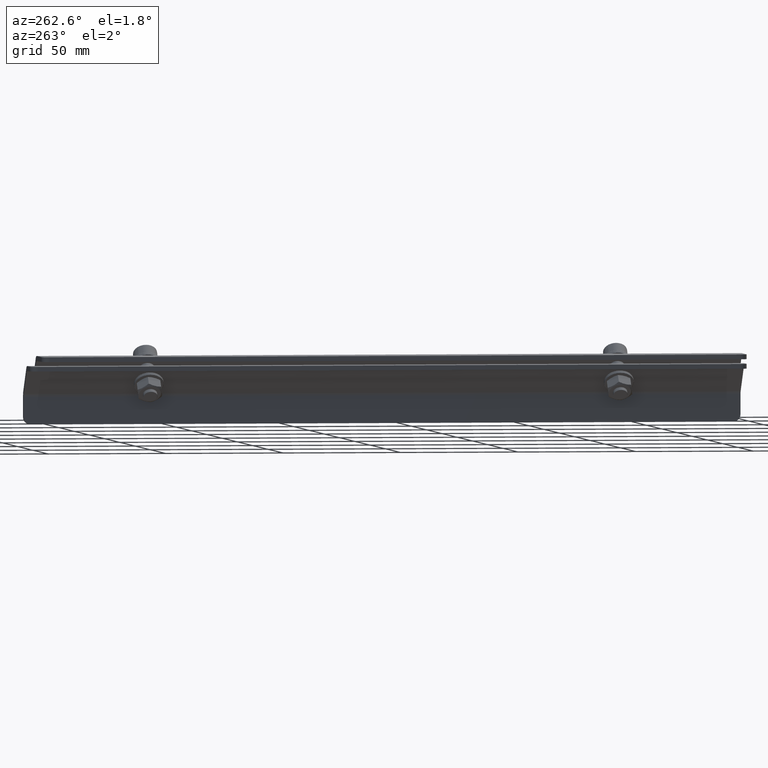
[diagram: clean part render]
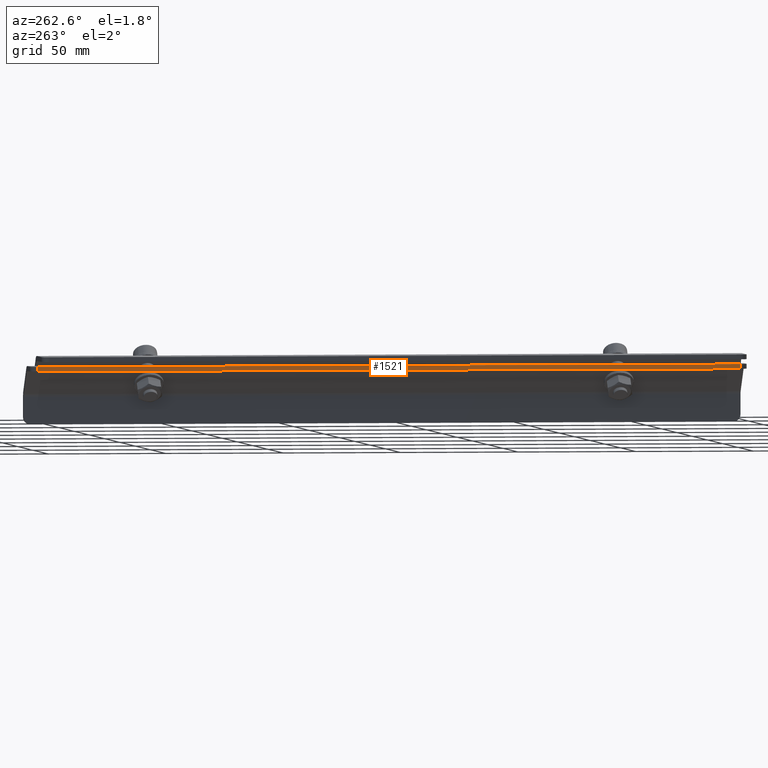
[diagram: same view with one face highlighted and labeled with its STEP entity id]
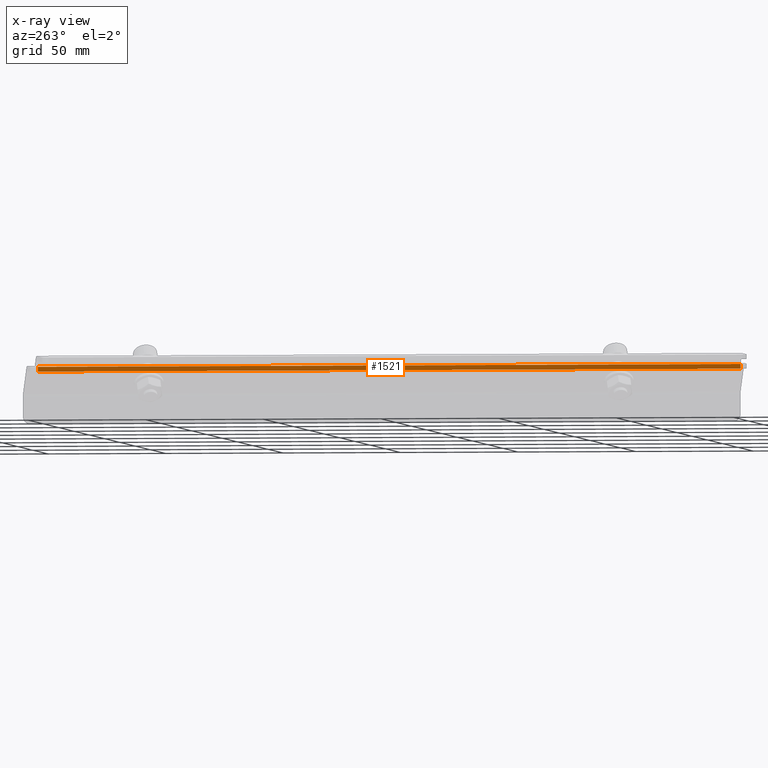
[diagram: x-ray of the same camera — body ghosted, the highlighted face saturated]
A machine part, auxiliary view. The second image highlights one B-rep face of the part: STEP entity #1521.
The next image is the same camera in x-ray: the body ghosted, the highlighted face saturated — about 0% of this face is hidden behind the body in this view.
In plain terms, the highlighted planar face has unit normal (-1, 0, 0).
Its self-contained STEP definition (entity closure, byte-faithful):
#4 = DIRECTION ( 'NONE',  ( 0.000000000000000000, 0.000000000000000000, 1.000000000000000000 ) ) ;
#57 = ORIENTED_EDGE ( 'NONE', *, *, #458, .T. ) ;
#458 = EDGE_CURVE ( 'NONE', #1101, #1626, #3897, .T. ) ;
#509 = AXIS2_PLACEMENT_3D ( 'NONE', #2040, #3015, #4 ) ;
#826 = CARTESIAN_POINT ( 'NONE',  ( -25.45242515708623188, -73.69554677319553093, 169.1843401663036275 ) ) ;
#897 = CARTESIAN_POINT ( 'NONE',  ( -25.45242515708623188, 228.2044532268045032, 170.3559130415574145 ) ) ;
#923 = CARTESIAN_POINT ( 'NONE',  ( -25.45242515708623188, -73.69554677319553093, 170.3559130415574145 ) ) ;
#1018 = ORIENTED_EDGE ( 'NONE', *, *, #2274, .F. ) ;
#1059 = EDGE_CURVE ( 'NONE', #2231, #2973, #2152, .T. ) ;
#1087 = PLANE ( 'NONE',  #509 ) ;
#1101 = VERTEX_POINT ( 'NONE', #923 ) ;
#1161 = DIRECTION ( 'NONE',  ( 0.000000000000000000, 1.000000000000000000, 0.000000000000000000 ) ) ;
#1350 = ORIENTED_EDGE ( 'NONE', *, *, #3143, .F. ) ;
#1354 = LINE ( 'NONE', #4261, #3808 ) ;
#1477 = CARTESIAN_POINT ( 'NONE',  ( -25.45242515708623188, 225.3044532268044691, 170.3559130415574145 ) ) ;
#1521 = ADVANCED_FACE ( 'NONE', ( #2318 ), #1087, .T. ) ;
#1626 = VERTEX_POINT ( 'NONE', #1477 ) ;
#1851 = CARTESIAN_POINT ( 'NONE',  ( -25.45242515708623188, -73.69554677319553093, 168.3559130415574145 ) ) ;
#2000 = DIRECTION ( 'NONE',  ( 0.000000000000000000, 0.000000000000000000, 1.000000000000000000 ) ) ;
#2040 = CARTESIAN_POINT ( 'NONE',  ( -25.45242515708623188, 228.2044532268045032, 170.3559130415574145 ) ) ;
#2089 = EDGE_LOOP ( 'NONE', ( #3339, #1018, #57, #1350 ) ) ;
#2152 = LINE ( 'NONE', #4201, #3397 ) ;
#2231 = VERTEX_POINT ( 'NONE', #1851 ) ;
#2274 = EDGE_CURVE ( 'NONE', #1101, #2231, #4177, .T. ) ;
#2284 = CARTESIAN_POINT ( 'NONE',  ( -25.45242515708623188, 225.3044532268044691, 168.3559130415574145 ) ) ;
#2318 = FACE_OUTER_BOUND ( 'NONE', #2089, .T. ) ;
#2523 = VECTOR ( 'NONE', #2853, 1000.000000000000000 ) ;
#2853 = DIRECTION ( 'NONE',  ( 0.000000000000000000, 0.000000000000000000, -1.000000000000000000 ) ) ;
#2973 = VERTEX_POINT ( 'NONE', #2284 ) ;
#3015 = DIRECTION ( 'NONE',  ( -1.000000000000000000, 0.000000000000000000, 0.000000000000000000 ) ) ;
#3112 = VECTOR ( 'NONE', #3971, 1000.000000000000000 ) ;
#3143 = EDGE_CURVE ( 'NONE', #2973, #1626, #1354, .T. ) ;
#3339 = ORIENTED_EDGE ( 'NONE', *, *, #1059, .F. ) ;
#3397 = VECTOR ( 'NONE', #1161, 1000.000000000000000 ) ;
#3808 = VECTOR ( 'NONE', #2000, 1000.000000000000000 ) ;
#3897 = LINE ( 'NONE', #897, #3112 ) ;
#3971 = DIRECTION ( 'NONE',  ( 0.000000000000000000, 1.000000000000000000, -0.000000000000000000 ) ) ;
#4177 = LINE ( 'NONE', #826, #2523 ) ;
#4201 = CARTESIAN_POINT ( 'NONE',  ( -25.45242515708623188, 228.2044532268045032, 168.3559130415574145 ) ) ;
#4261 = CARTESIAN_POINT ( 'NONE',  ( -25.45242515708623188, 225.3044532268044691, 170.3559130415574145 ) ) ;